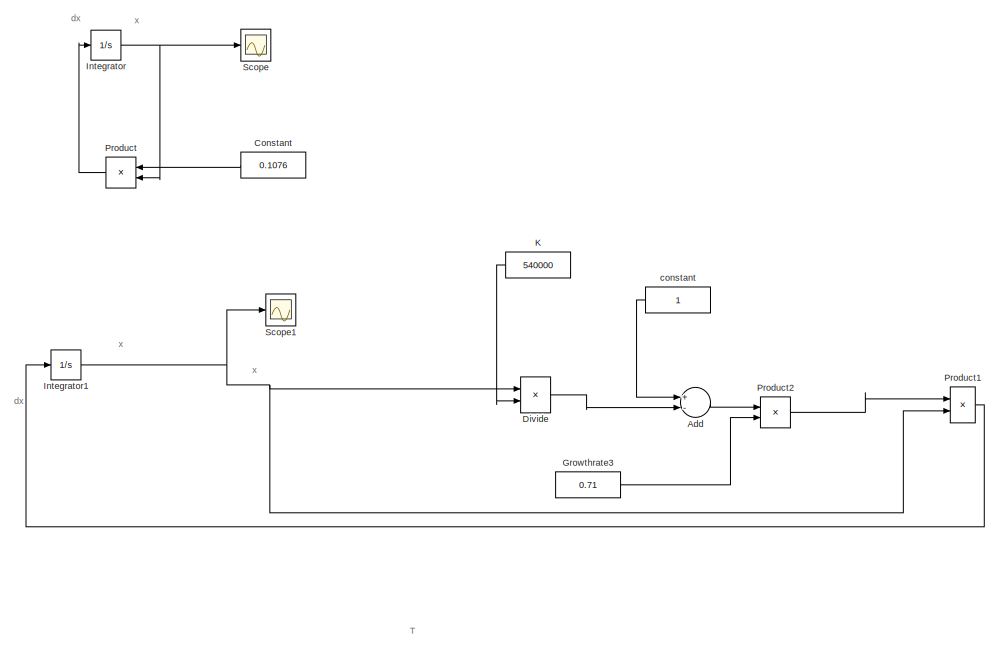
[diagram: root canvas - part 1/2, full width, top band]
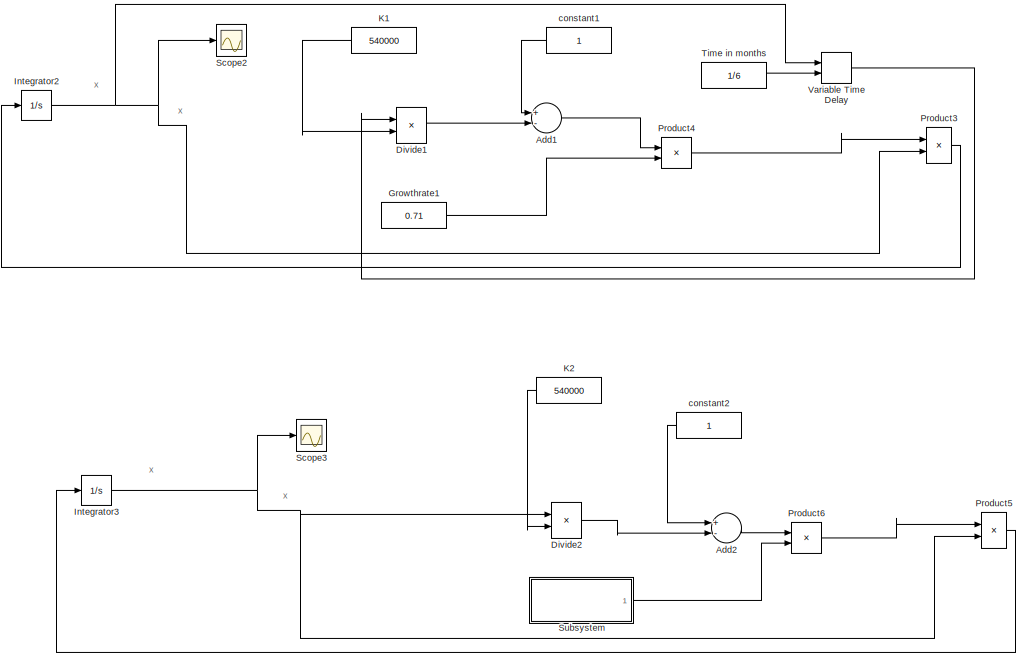
[diagram: root canvas - part 2/2, full width, bottom band]
MODEL slx_dcad387f4dae
KIND model
BLOCK [Sum] Add
  InputSameDT = off
  Inputs = +-
  OutDataTypeStr = Inherit: Inherit via internal rule
  Ports = [2, 1]
  SaturateOnIntegerOverflow = off
BLOCK [Sum] Add1
  InputSameDT = off
  Inputs = +-
  OutDataTypeStr = Inherit: Inherit via internal rule
  Ports = [2, 1]
  SaturateOnIntegerOverflow = off
BLOCK [Sum] Add2
  InputSameDT = off
  Inputs = +-
  OutDataTypeStr = Inherit: Inherit via internal rule
  Ports = [2, 1]
  SaturateOnIntegerOverflow = off
BLOCK [Constant] Constant
  Value = 0.1076
BLOCK [Product] Divide
  InputSameDT = off
  Inputs = */
  OutDataTypeStr = Inherit: Inherit via internal rule
  Ports = [2, 1]
  RndMeth = Floor
  SaturateOnIntegerOverflow = off
BLOCK [Product] Divide1
  InputSameDT = off
  Inputs = */
  OutDataTypeStr = Inherit: Inherit via internal rule
  Ports = [2, 1]
  RndMeth = Floor
  SaturateOnIntegerOverflow = off
BLOCK [Product] Divide2
  InputSameDT = off
  Inputs = */
  OutDataTypeStr = Inherit: Inherit via internal rule
  Ports = [2, 1]
  RndMeth = Floor
  SaturateOnIntegerOverflow = off
BLOCK [Constant] Growthrate1
  Value = 0.71
BLOCK [Constant] Growthrate3
  Value = 0.71
BLOCK [Integrator] Integrator
  InitialCondition = 16.4775
  Ports = [1, 1]
BLOCK [Integrator] Integrator1
  InitialCondition = 540000/4
  Ports = [1, 1]
BLOCK [Integrator] Integrator2
  InitialCondition = 540000/4
  Ports = [1, 1]
BLOCK [Integrator] Integrator3
  InitialCondition = 540000/4
  Ports = [1, 1]
BLOCK [Constant] K
  Value = 540000
BLOCK [Constant] K1
  Value = 540000
BLOCK [Constant] K2
  Value = 540000
BLOCK [Product] Product
  InputSameDT = off
  OutDataTypeStr = Inherit: Inherit via internal rule
  Ports = [2, 1]
  RndMeth = Floor
  SaturateOnIntegerOverflow = off
BLOCK [Product] Product1
  InputSameDT = off
  OutDataTypeStr = Inherit: Inherit via internal rule
  Ports = [2, 1]
  RndMeth = Floor
  SaturateOnIntegerOverflow = off
BLOCK [Product] Product2
  InputSameDT = off
  OutDataTypeStr = Inherit: Inherit via internal rule
  Ports = [2, 1]
  RndMeth = Floor
  SaturateOnIntegerOverflow = off
BLOCK [Product] Product3
  InputSameDT = off
  OutDataTypeStr = Inherit: Inherit via internal rule
  Ports = [2, 1]
  RndMeth = Floor
  SaturateOnIntegerOverflow = off
BLOCK [Product] Product4
  InputSameDT = off
  OutDataTypeStr = Inherit: Inherit via internal rule
  Ports = [2, 1]
  RndMeth = Floor
  SaturateOnIntegerOverflow = off
BLOCK [Product] Product5
  InputSameDT = off
  OutDataTypeStr = Inherit: Inherit via internal rule
  Ports = [2, 1]
  RndMeth = Floor
  SaturateOnIntegerOverflow = off
BLOCK [Product] Product6
  InputSameDT = off
  OutDataTypeStr = Inherit: Inherit via internal rule
  Ports = [2, 1]
  RndMeth = Floor
  SaturateOnIntegerOverflow = off
BLOCK [Scope] Scope
  DataFormat = StructureWithTime
  Floating = off
  NumInputPorts = 1
  Ports = [1]
  SampleTime = 0
  ShowLegends = off
BLOCK [Scope] Scope1
  DataFormat = StructureWithTime
  Floating = off
  NumInputPorts = 1
  Ports = [1]
  SampleTime = 0
  SaveName = ScopeData1
  ShowLegends = off
BLOCK [Scope] Scope2
  DataFormat = StructureWithTime
  Floating = off
  NumInputPorts = 1
  Ports = [1]
  SampleTime = 0
  SaveName = ScopeData2
  ShowLegends = off
BLOCK [Scope] Scope3
  DataFormat = StructureWithTime
  Floating = off
  NumInputPorts = 1
  Ports = [1]
  SampleTime = 0
  SaveName = ScopeData3
  ShowLegends = off
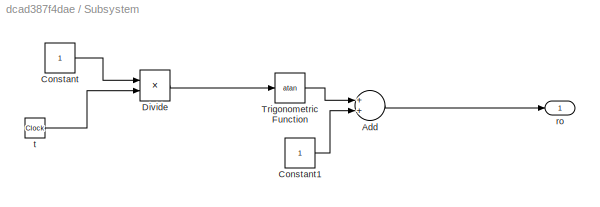
BLOCK [SubSystem] Subsystem
  FunctionWithSeparateData = off
  MaskHideContents = off
  MinAlgLoopOccurrences = off
  Opaque = off
  Ports = [0, 1]
  PropExecContextOutsideSubsystem = off
  RTWSystemCode = Auto
  RequestExecContextInheritance = off
BLOCK [Sum] Subsystem/Add
  InputSameDT = off
  OutDataTypeStr = Inherit: Inherit via internal rule
  Ports = [2, 1]
  SaturateOnIntegerOverflow = off
BLOCK [Constant] Subsystem/Constant
BLOCK [Constant] Subsystem/Constant1
BLOCK [Product] Subsystem/Divide
  InputSameDT = off
  Inputs = */
  OutDataTypeStr = Inherit: Inherit via internal rule
  Ports = [2, 1]
  RndMeth = Floor
  SaturateOnIntegerOverflow = off
BLOCK [Trigonometry] Subsystem/Trigonometric Function
  Operator = atan
  Ports = [1, 1]
BLOCK [Outport] Subsystem/ro
  IconDisplay = Port number
BLOCK [Clock] Subsystem/t 
BLOCK [Constant] Time in months
  Value = 1/6
BLOCK [VariableTransportDelay] Variable Time Delay
  MaximumDelay = 10
  Ports = [2, 1]
BLOCK [Constant] constant
BLOCK [Constant] constant1
BLOCK [Constant] constant2
ANNOTATION (root): T
ANNOTATION (root): dx
ANNOTATION (root): x
LINE Add1:1 -> Product4:1
LINE Add2:1 -> Product6:1
LINE Add:1 -> Product2:1
LINE Constant:1 -> Product:1
LINE Divide1:1 -> Add1:2
LINE Divide2:1 -> Add2:2
LINE Divide:1 -> Add:2
LINE Growthrate1:1 -> Product4:2
LINE Growthrate3:1 -> Product2:2
NET Integrator1:1 -> Divide:1, Product1:2, Scope1:1
NET Integrator2:1 -> Product3:2, Scope2:1, Variable Time Delay:1
NET Integrator3:1 -> Divide2:1, Product5:2, Scope3:1
NET Integrator:1 -> Product:2, Scope:1
LINE K1:1 -> Divide1:2
LINE K2:1 -> Divide2:2
LINE K:1 -> Divide:2
LINE Product1:1 -> Integrator1:1
LINE Product2:1 -> Product1:1
LINE Product3:1 -> Integrator2:1
LINE Product4:1 -> Product3:1
LINE Product5:1 -> Integrator3:1
LINE Product6:1 -> Product5:1
LINE Product:1 -> Integrator:1
LINE Subsystem/Add:1 -> Subsystem/ro:1
LINE Subsystem/Constant1:1 -> Subsystem/Add:2
LINE Subsystem/Constant:1 -> Subsystem/Divide:1
LINE Subsystem/Divide:1 -> Subsystem/Trigonometric Function:1
LINE Subsystem/Trigonometric Function:1 -> Subsystem/Add:1
LINE Subsystem/t :1 -> Subsystem/Divide:2
LINE Subsystem:1 -> Product6:2
LINE Time in months:1 -> Variable Time Delay:2
LINE Variable Time Delay:1 -> Divide1:1
LINE constant1:1 -> Add1:1
LINE constant2:1 -> Add2:1
LINE constant:1 -> Add:1
note: NET lines group one-source signal fan-out (src -> all destinations, sorted); 1:1 wires keep LINE
